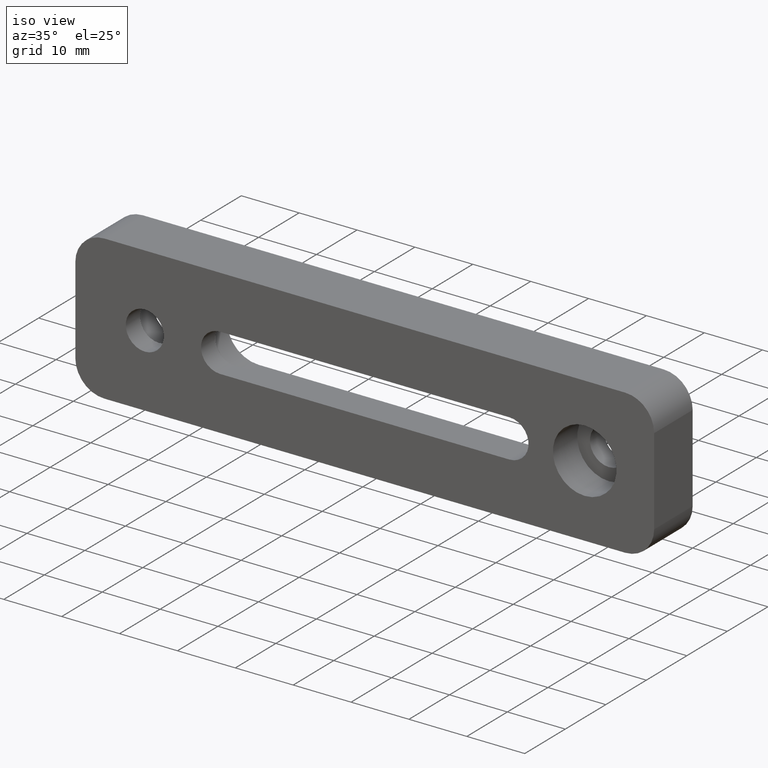
[diagram: clean part render]
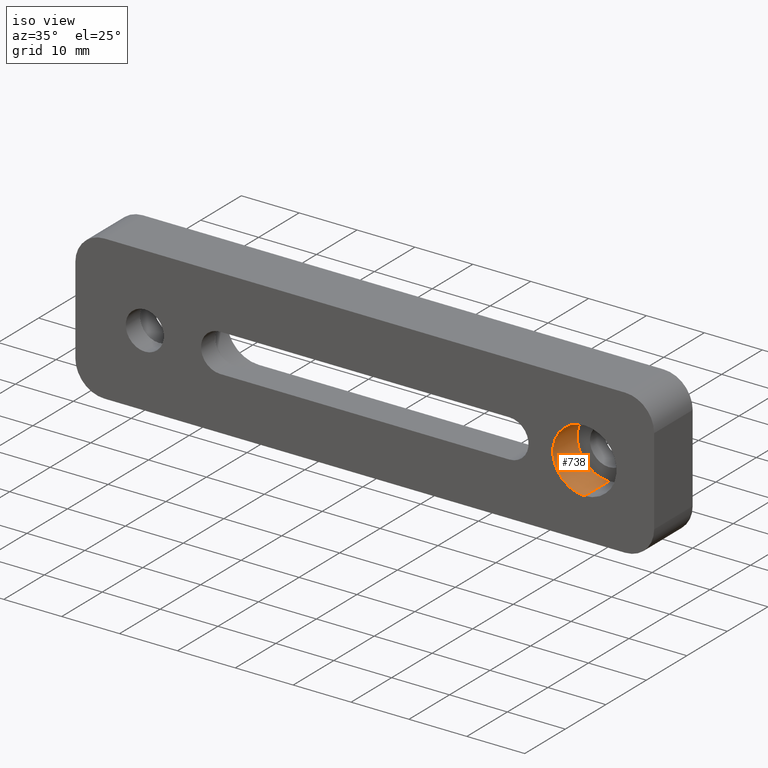
[diagram: same view with one face highlighted and labeled with its STEP entity id]
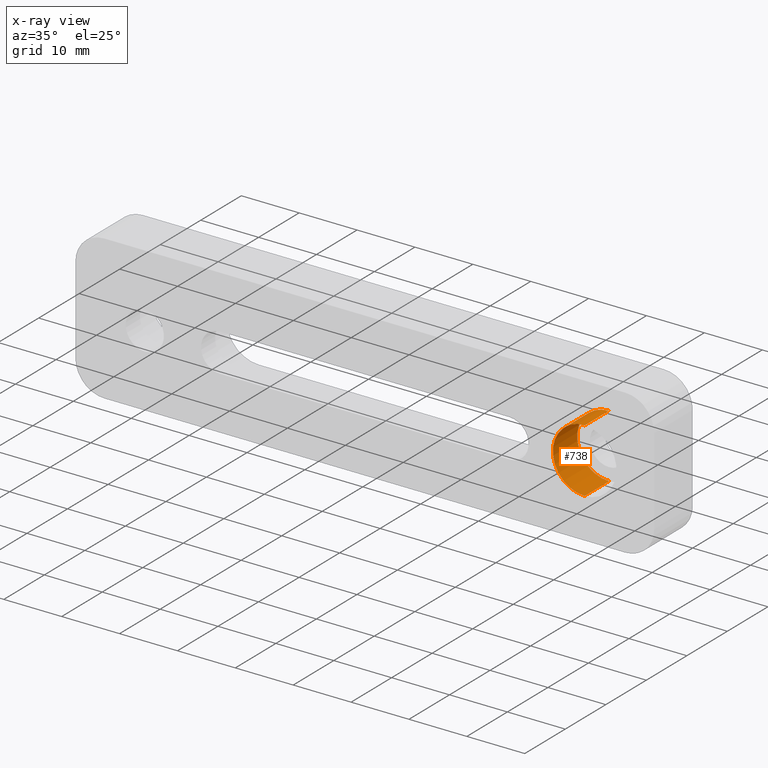
[diagram: x-ray of the same camera — body ghosted, the highlighted face saturated]
A machine part, iso view. The second image highlights one B-rep face of the part: STEP entity #738.
The next image is the same camera in x-ray: the body ghosted, the highlighted face saturated — about 0% of this face is hidden behind the body in this view.
In plain terms, the highlighted cylindrical surface (partial cylindrical patch) has radius 5.5 mm, axis along (-0, -1, -0).
Its self-contained STEP definition (entity closure, byte-faithful):
#8 = EDGE_CURVE ( 'NONE', #67, #720, #146, .T. ) ;
#19 = CIRCLE ( 'NONE', #629, 5.499999999999998200 ) ;
#20 = CARTESIAN_POINT ( 'NONE',  ( 38.00000000000000000, -9.500000000000000000, -5.499999999999998200 ) ) ;
#60 = CARTESIAN_POINT ( 'NONE',  ( 38.00000000000000000, -3.500000000000001300, 0.0000000000000000000 ) ) ;
#67 = VERTEX_POINT ( 'NONE', #198 ) ;
#89 = ORIENTED_EDGE ( 'NONE', *, *, #912, .T. ) ;
#111 = DIRECTION ( 'NONE',  ( -0.0000000000000000000, -1.000000000000000000, -0.0000000000000000000 ) ) ;
#134 = CIRCLE ( 'NONE', #276, 5.499999999999998200 ) ;
#143 = DIRECTION ( 'NONE',  ( 0.0000000000000000000, 0.0000000000000000000, -1.000000000000000000 ) ) ;
#146 = LINE ( 'NONE', #889, #528 ) ;
#158 = CARTESIAN_POINT ( 'NONE',  ( 38.00000000000000000, -9.500000000000000000, 0.0000000000000000000 ) ) ;
#198 = CARTESIAN_POINT ( 'NONE',  ( 38.00000000000000000, -3.500000000000001300, -5.499999999999998200 ) ) ;
#238 = DIRECTION ( 'NONE',  ( -0.0000000000000000000, -1.000000000000000000, -0.0000000000000000000 ) ) ;
#253 = CYLINDRICAL_SURFACE ( 'NONE', #434, 5.499999999999998200 ) ;
#260 = VECTOR ( 'NONE', #497, 1000.000000000000000 ) ;
#276 = AXIS2_PLACEMENT_3D ( 'NONE', #293, #650, #143 ) ;
#293 = CARTESIAN_POINT ( 'NONE',  ( 38.00000000000000000, -9.500000000000000000, 0.0000000000000000000 ) ) ;
#323 = VERTEX_POINT ( 'NONE', #393 ) ;
#371 = DIRECTION ( 'NONE',  ( -0.0000000000000000000, -1.000000000000000000, -0.0000000000000000000 ) ) ;
#380 = DIRECTION ( 'NONE',  ( 0.0000000000000000000, 0.0000000000000000000, -1.000000000000000000 ) ) ;
#388 = EDGE_CURVE ( 'NONE', #323, #877, #441, .T. ) ;
#393 = CARTESIAN_POINT ( 'NONE',  ( 38.00000000000000000, -3.500000000000001300, 5.499999999999998200 ) ) ;
#421 = DIRECTION ( 'NONE',  ( 0.0000000000000000000, 0.0000000000000000000, -1.000000000000000000 ) ) ;
#434 = AXIS2_PLACEMENT_3D ( 'NONE', #158, #111, #421 ) ;
#441 = LINE ( 'NONE', #763, #260 ) ;
#497 = DIRECTION ( 'NONE',  ( -0.0000000000000000000, -1.000000000000000000, -0.0000000000000000000 ) ) ;
#528 = VECTOR ( 'NONE', #238, 1000.000000000000000 ) ;
#627 = FACE_OUTER_BOUND ( 'NONE', #655, .T. ) ;
#629 = AXIS2_PLACEMENT_3D ( 'NONE', #60, #371, #380 ) ;
#650 = DIRECTION ( 'NONE',  ( -0.0000000000000000000, -1.000000000000000000, -0.0000000000000000000 ) ) ;
#655 = EDGE_LOOP ( 'NONE', ( #764, #935, #89, #913 ) ) ;
#678 = CARTESIAN_POINT ( 'NONE',  ( 38.00000000000000000, -9.500000000000000000, 5.499999999999998200 ) ) ;
#720 = VERTEX_POINT ( 'NONE', #20 ) ;
#738 = ADVANCED_FACE ( 'NONE', ( #627 ), #253, .F. ) ;
#763 = CARTESIAN_POINT ( 'NONE',  ( 38.00000000000000000, -9.500000000000000000, 5.499999999999998200 ) ) ;
#764 = ORIENTED_EDGE ( 'NONE', *, *, #799, .F. ) ;
#799 = EDGE_CURVE ( 'NONE', #323, #67, #19, .T. ) ;
#877 = VERTEX_POINT ( 'NONE', #678 ) ;
#889 = CARTESIAN_POINT ( 'NONE',  ( 38.00000000000000000, -9.500000000000000000, -5.499999999999998200 ) ) ;
#912 = EDGE_CURVE ( 'NONE', #877, #720, #134, .T. ) ;
#913 = ORIENTED_EDGE ( 'NONE', *, *, #8, .F. ) ;
#935 = ORIENTED_EDGE ( 'NONE', *, *, #388, .T. ) ;